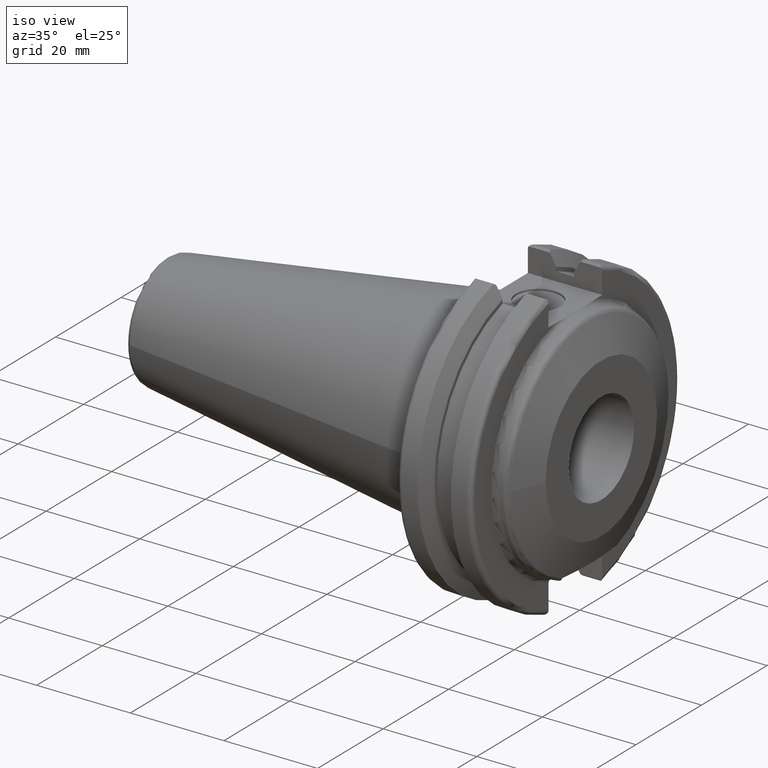
[diagram: clean part render]
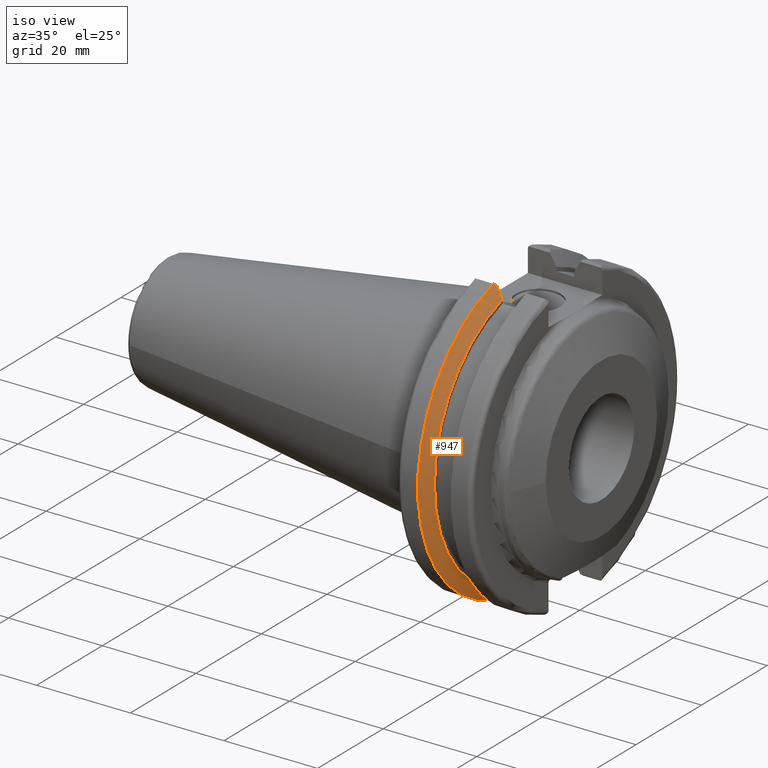
[diagram: same view with one face highlighted and labeled with its STEP entity id]
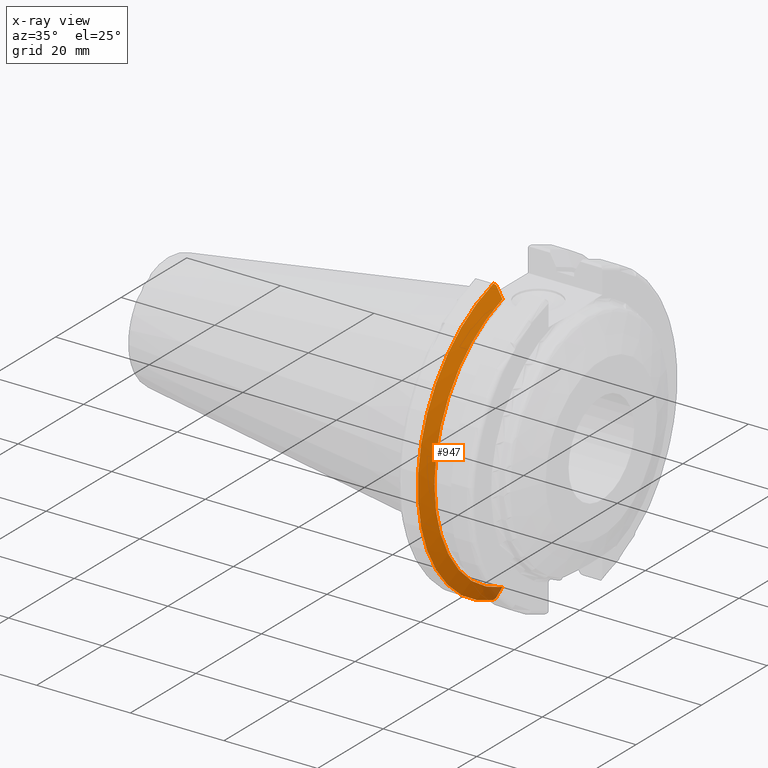
[diagram: x-ray of the same camera — body ghosted, the highlighted face saturated]
A machine part, iso view. The second image highlights one B-rep face of the part: STEP entity #947.
The next image is the same camera in x-ray: the body ghosted, the highlighted face saturated — about 3% of this face is hidden behind the body in this view.
In plain terms, the highlighted conical surface has half-angle 60 deg.
Its self-contained STEP definition (entity closure, byte-faithful):
#37=CONICAL_SURFACE('',#1061,30.3546886482472,1.0471975511966);
#158=(
BOUNDED_CURVE()
B_SPLINE_CURVE(2,(#1604,#1605,#1606),.UNSPECIFIED.,.F.,.F.)
B_SPLINE_CURVE_WITH_KNOTS((3,3),(0.,0.276549142796478),.UNSPECIFIED.)
CURVE()
GEOMETRIC_REPRESENTATION_ITEM()
RATIONAL_B_SPLINE_CURVE((1.,1.00095203904184,1.00031614445101))
REPRESENTATION_ITEM('')
);
#161=(
BOUNDED_CURVE()
B_SPLINE_CURVE(2,(#1632,#1633,#1634),.UNSPECIFIED.,.F.,.F.)
B_SPLINE_CURVE_WITH_KNOTS((3,3),(0.0550586467392363,0.33160778953585),
 .UNSPECIFIED.)
CURVE()
GEOMETRIC_REPRESENTATION_ITEM()
RATIONAL_B_SPLINE_CURVE((1.00031614445119,1.00095203904237,1.))
REPRESENTATION_ITEM('')
);
#162=(
BOUNDED_CURVE()
B_SPLINE_CURVE(2,(#1675,#1676,#1677),.UNSPECIFIED.,.F.,.F.)
B_SPLINE_CURVE_WITH_KNOTS((3,3),(0.,0.0639048713675863),.UNSPECIFIED.)
CURVE()
GEOMETRIC_REPRESENTATION_ITEM()
RATIONAL_B_SPLINE_CURVE((1.,1.00028444218292,1.00047644010588))
REPRESENTATION_ITEM('')
);
#164=(
BOUNDED_CURVE()
B_SPLINE_CURVE(2,(#1726,#1727,#1728),.UNSPECIFIED.,.F.,.F.)
B_SPLINE_CURVE_WITH_KNOTS((3,3),(0.329353533631228,0.393258405001025),
 .UNSPECIFIED.)
CURVE()
GEOMETRIC_REPRESENTATION_ITEM()
RATIONAL_B_SPLINE_CURVE((1.00047644010593,1.00028444218295,1.))
REPRESENTATION_ITEM('')
);
#236=FACE_OUTER_BOUND('',#292,.T.);
#292=EDGE_LOOP('',(#834,#835,#836,#837,#838,#839));
#340=CIRCLE('',#1049,31.75);
#345=CIRCLE('',#1062,28.9593772964944);
#427=VERTEX_POINT('',#1601);
#428=VERTEX_POINT('',#1603);
#437=VERTEX_POINT('',#1629);
#438=VERTEX_POINT('',#1631);
#445=VERTEX_POINT('',#1673);
#454=VERTEX_POINT('',#1725);
#539=EDGE_CURVE('',#428,#427,#158,.T.);
#550=EDGE_CURVE('',#438,#437,#161,.T.);
#562=EDGE_CURVE('',#445,#427,#162,.T.);
#575=EDGE_CURVE('',#438,#454,#164,.T.);
#585=EDGE_CURVE('',#445,#454,#340,.T.);
#598=EDGE_CURVE('',#428,#437,#345,.T.);
#834=ORIENTED_EDGE('',*,*,#575,.F.);
#835=ORIENTED_EDGE('',*,*,#550,.T.);
#836=ORIENTED_EDGE('',*,*,#598,.F.);
#837=ORIENTED_EDGE('',*,*,#539,.T.);
#838=ORIENTED_EDGE('',*,*,#562,.F.);
#839=ORIENTED_EDGE('',*,*,#585,.T.);
#947=ADVANCED_FACE('',(#236),#37,.T.);
#1049=AXIS2_PLACEMENT_3D('',#1749,#1262,#1263);
#1061=AXIS2_PLACEMENT_3D('',#1783,#1290,#1291);
#1062=AXIS2_PLACEMENT_3D('',#1784,#1292,#1293);
#1262=DIRECTION('center_axis',(1.,0.,0.));
#1263=DIRECTION('ref_axis',(0.,0.,-1.));
#1290=DIRECTION('center_axis',(-1.,0.,0.));
#1291=DIRECTION('ref_axis',(0.,-1.,-1.22464679914735E-16));
#1292=DIRECTION('center_axis',(1.,0.,0.));
#1293=DIRECTION('ref_axis',(0.,0.,-1.));
#1601=CARTESIAN_POINT('',(7.88668530351257,-8.19,30.1755016258903));
#1603=CARTESIAN_POINT('',(9.2191,-8.19,27.7771386827498));
#1604=CARTESIAN_POINT('Ctrl Pts',(9.2191,-8.19,27.7771386827498));
#1605=CARTESIAN_POINT('Ctrl Pts',(8.58046356152232,-8.19,28.9303689539734));
#1606=CARTESIAN_POINT('Ctrl Pts',(7.88668530351257,-8.19,30.1755016258903));
#1629=CARTESIAN_POINT('',(9.2191,-8.19,-27.7771386827498));
#1631=CARTESIAN_POINT('',(7.88668530351257,-8.19,-30.1755016258903));
#1632=CARTESIAN_POINT('Ctrl Pts',(7.88668530351257,-8.19,-30.1755016258903));
#1633=CARTESIAN_POINT('Ctrl Pts',(8.58046356152369,-8.19,-28.9303689539709));
#1634=CARTESIAN_POINT('Ctrl Pts',(9.2191,-8.19,-27.7771386827498));
#1673=CARTESIAN_POINT('',(7.60793323092436,-8.67204822802685,30.5427254764662));
#1675=CARTESIAN_POINT('Ctrl Pts',(7.60793323092436,-8.67204822802686,30.5427254764662));
#1676=CARTESIAN_POINT('Ctrl Pts',(7.7489914812163,-8.42917748262643,30.357706789263));
#1677=CARTESIAN_POINT('Ctrl Pts',(7.88668530351257,-8.19,30.1755016258903));
#1725=CARTESIAN_POINT('',(7.60793323092436,-8.67204822802685,-30.5427254764662));
#1726=CARTESIAN_POINT('Ctrl Pts',(7.88668530351257,-8.19,-30.1755016258903));
#1727=CARTESIAN_POINT('Ctrl Pts',(7.74899148121162,-8.42917748263462,-30.3577067892692));
#1728=CARTESIAN_POINT('Ctrl Pts',(7.60793323092436,-8.67204822802687,-30.5427254764662));
#1749=CARTESIAN_POINT('Origin',(7.60793323092436,0.,0.));
#1783=CARTESIAN_POINT('Origin',(8.41351661546218,0.,0.));
#1784=CARTESIAN_POINT('Origin',(9.2191,0.,0.));